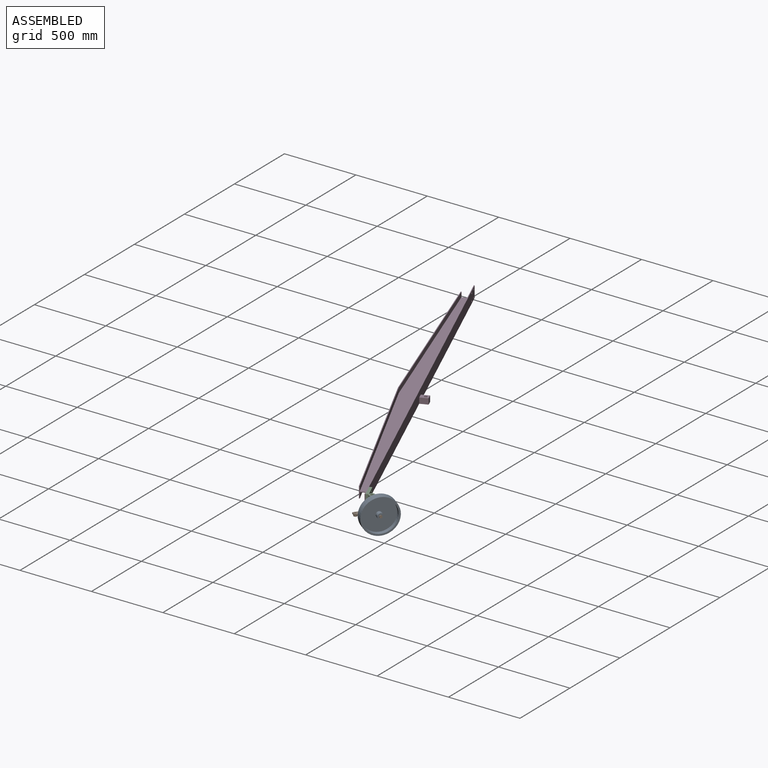
[diagram: assembled view]
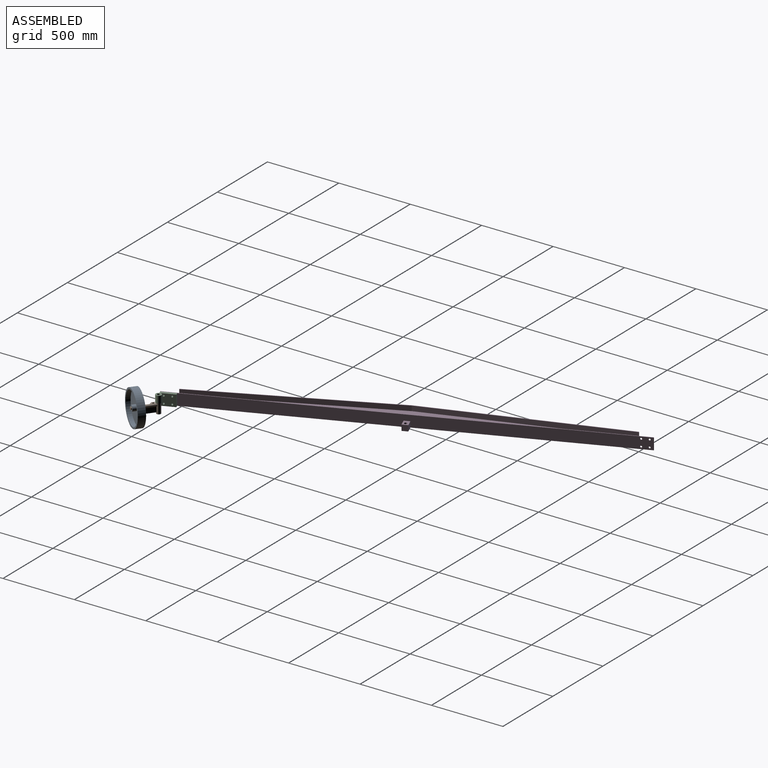
[diagram: assembled view, second angle]
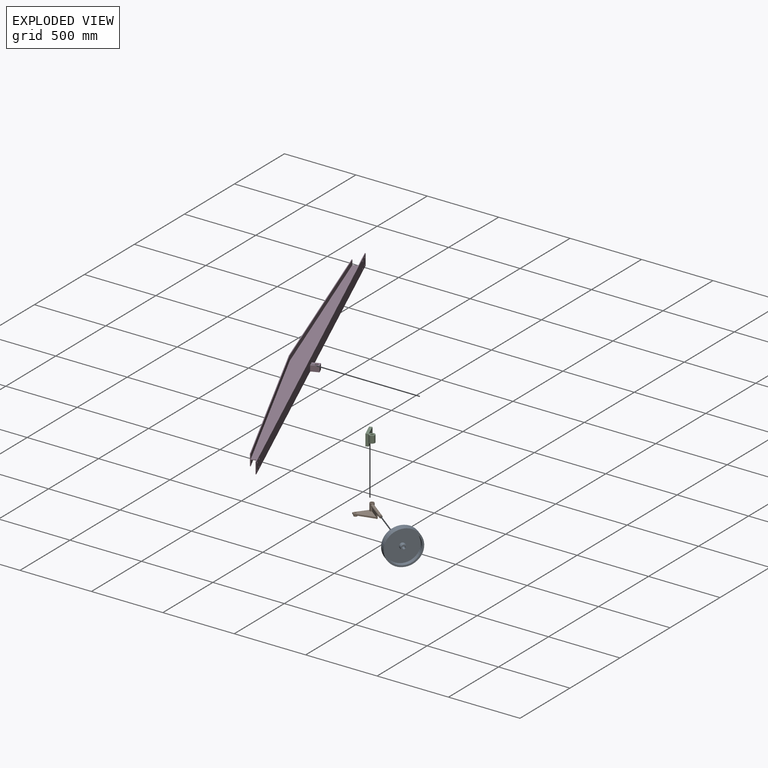
[diagram: exploded view]
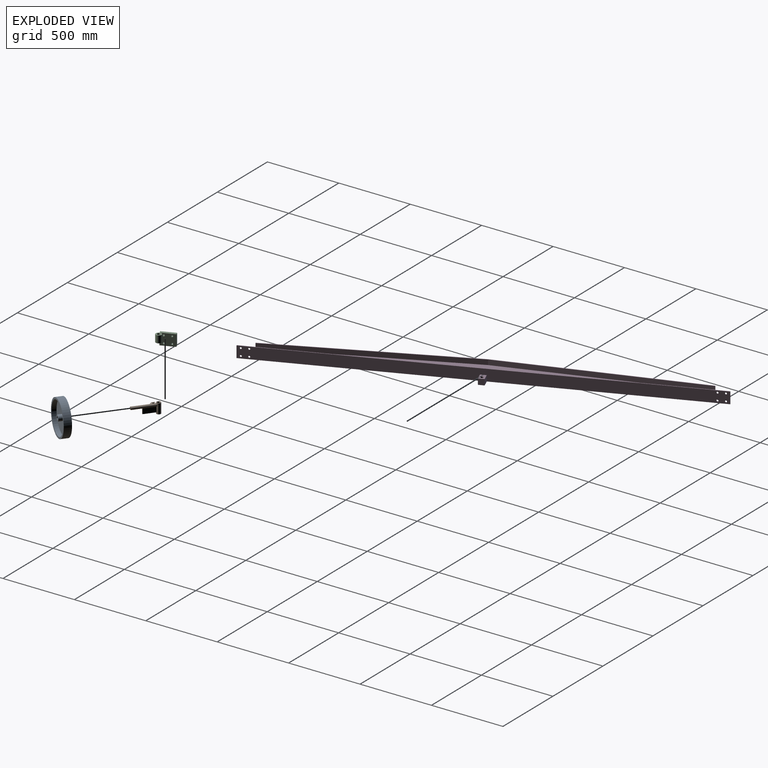
[diagram: exploded view, second angle]
ASSEMBLY  parts=4 mates=3
PART A: 8 faces, bbox 244x50x244 mm
  f0: plane 220x220mm, normal (0,-1,0), area 36756.6mm2, adj f4,f6
  f1: cylinder r=10mm len=50mm, axis (0,1,0), area 3141.6mm2, adj f3,f7
  f2: cylinder r=122mm len=244mm, axis (0,1,0), area 38327.4mm2, adj f3,f5
  f3: plane 244x244mm, normal (0,1,0), area 46445.3mm2, adj f1,f2
  f4: cylinder r=110mm len=220mm, axis (0,1,0), area 20734.5mm2, adj f0,f5
  f5: plane 244x244mm, normal (0,-1,0), area 8746.2mm2, adj f2,f4
  f6: cylinder r=20mm len=40mm, axis (0,1,0), area 3769.9mm2, adj f0,f7
  f7: plane 40x40mm, normal (0,-1,0), area 942.5mm2, adj f1,f6
PART B: 25 faces, bbox 130x185x70 mm
  f0: cylinder r=10mm len=55mm, axis (0,1,0), area 3455.8mm2, adj f2,f8
  f1: cylinder r=9.5mm len=19mm, axis (0,-1,0), area 119.4mm2, adj f2,f3
  f2: plane 20x20mm, normal (0,-1,0), area 30.6mm2, adj f0,f1
  f3: plane 20x20mm, normal (0,1,0), area 30.6mm2, adj f1,f5
  f4: plane 20x20mm, normal (0,-1,0), area 314.2mm2, adj f5
  f5: cylinder r=10mm len=20mm, axis (0,1,0), area 125.7mm2, adj f3,f4
  f6: cylinder r=9.5mm len=19mm, axis (0,-1,0), area 119.4mm2, adj f7,f8
  f7: plane 20x20mm, normal (0,-1,0), area 30.6mm2, adj f6,f12
  f8: plane 20x20mm, normal (0,1,0), area 30.6mm2, adj f0,f6
  f9: cylinder r=10.05mm len=70mm, axis (0,0,-1), area 4420.2mm2, adj f10,f13
  f10: plane 30x30mm, normal (0,0,-1), area 389.5mm2, adj f9,f11
  f11: cylinder r=15mm len=70mm, axis (0,0,-1), area 5641.8mm2, adj f10,f12,f13,f14,f15,f17,f18,f19
  f12: cylinder r=10mm len=97.82mm, axis (0,1,0), area 5337.1mm2, adj f7,f11,f14,f15,f16
  f13: plane 30x30mm, normal (0,0,1), area 389.5mm2, adj f9,f11
  f14: plane 83.54x35.84mm, normal (1,0,0), area 2189.6mm2, adj f11,f12,f16,f17,f19,f20
  f15: plane 83.54x35.84mm, normal (-1,0,0), area 2993.8mm2, adj f11,f12,f16,f17
  f16: plane 35.84x8mm, normal (0,-1,0), area 282.2mm2, adj f12,f14,f15,f17
  f17: plane 119x110mm, normal (0,0,1), area 7026.6mm2, adj f11,f14,f15,f16,f18,f20,f21,f23
  f18: plane 106x10mm, normal (0,1,0), area 1060mm2, adj f11,f17,f19,f21
  f19: plane 111x106.87mm, normal (0,0,-1), area 6690.8mm2, adj f11,f14,f18,f20,f21,f22
  f20: plane 111x86.87mm, normal (0.62,-0.79,0), area 1409.5mm2, adj f14,f17,f19,f21
  f21: plane 20x10mm, normal (1,0,0), area 200mm2, adj f17,f18,f19,f20
  f22: cylinder r=6.25mm len=20mm, axis (0,0,-1), area 785.4mm2, adj f19,f24
  f23: cylinder r=12mm len=24mm, axis (0,0,-1), area 754mm2, adj f17,f24
  f24: plane 24x24mm, normal (0,0,1), area 329.7mm2, adj f22,f23
PART C: 13 faces, bbox 120x59x80 mm
  f0: plane 80x20mm, normal (1,0,0), area 1550mm2, adj f1,f2,f4,f9,f11,f12
  f1: plane 100x80mm, normal (0,-1,0), area 7235.4mm2, adj f0,f2,f3,f4,f5,f6,f7,f8
  f2: plane 100x20mm, normal (0,0,1), area 2000mm2, adj f0,f1,f3,f9
  f3: plane 80x20mm, normal (-1,0,0), area 1600mm2, adj f1,f2,f4,f9
  f4: plane 120x59mm, normal (0,0,-1), area 2938.3mm2, adj f0,f1,f3,f9,f10,f11
  f5: cylinder r=6mm len=20mm, axis (0,1,0), area 754mm2, adj f1,f9
  f6: cylinder r=6mm len=20mm, axis (0,1,0), area 754mm2, adj f1,f9
  f7: cylinder r=6mm len=20mm, axis (0,1,0), area 754mm2, adj f1,f9
  f8: cylinder r=6mm len=20mm, axis (0,1,0), area 754mm2, adj f1,f9
  f9: plane 100x80mm, normal (0,1,0), area 7547.6mm2, adj f0,f2,f3,f4,f5,f6,f7,f8
  f10: cylinder r=10mm len=50mm, axis (0,0,1), area 3141.6mm2, adj f4,f12
  f11: cylinder r=20mm len=50mm, axis (0,0,1), area 5965.6mm2, adj f0,f1,f4,f12
  f12: plane 40x40mm, normal (0,0,1), area 938.3mm2, adj f0,f1,f10,f11
PART D: 31 faces, bbox 2900x80x185 mm
  f0: plane 2900x80mm, normal (0,0,-1), area 229418.3mm2, adj f14,f15,f16,f17,f18,f19,f20,f21
  f1: plane 2900x80mm, normal (0,0,1), area 217518.3mm2, adj f2,f3,f4,f5,f14,f15,f16,f17
  f2: plane 80x55.01mm, normal (1,0,0), area 650.5mm2, adj f1,f4,f5,f6,f9,f10,f12,f13
  f3: plane 80x55.01mm, normal (-1,0,0), area 650.5mm2, adj f1,f4,f5,f7,f8,f11,f12,f13
  f4: plane 2700x120mm, normal (0,-1,0), area 229500mm2, adj f1,f2,f3,f10,f11
  f5: plane 2700x120mm, normal (0,1,0), area 229500mm2, adj f1,f2,f3,f6,f7
  f6: plane 1350x70mm, normal (-0.05,0,-1), area 54072.5mm2, adj f2,f5,f7,f12
  f7: plane 1350x70mm, normal (0.05,0,-1), area 54072.5mm2, adj f3,f5,f6,f12
  f8: plane 1350x80mm, normal (-0.05,0,1), area 108145.1mm2, adj f3,f9,f12,f13
  f9: plane 1350x80mm, normal (0.05,0,1), area 108145.1mm2, adj f2,f8,f12,f13
  f10: plane 1350x70mm, normal (-0.05,0,-1), area 47313.5mm2, adj f2,f4,f11,f13
  f11: plane 1350x70mm, normal (0.05,0,-1), area 47313.5mm2, adj f3,f4,f10,f13
  f12: plane 2700x75.01mm, normal (0,1,0), area 13518.1mm2, adj f2,f3,f6,f7,f8,f9
  f13: plane 2700x75.01mm, normal (0,-1,0), area 13518.1mm2, adj f2,f3,f8,f9,f10,f11
  f14: plane 2900x60mm, normal (0,1,0), area 16382.7mm2, adj f0,f1,f16,f17,f26,f27,f28,f29
  f15: plane 2900x5mm, normal (0,-1,0), area 14500mm2, adj f0,f1,f16,f17
  f16: plane 80x5mm, normal (-1,0,0), area 400mm2, adj f0,f1,f14,f15
  f17: plane 80x5mm, normal (1,0,0), area 400mm2, adj f0,f1,f14,f15
  f18: cylinder r=6.25mm len=12.5mm, axis (0,0,1), area 196.3mm2, adj f0,f1
  f19: cylinder r=6.25mm len=12.5mm, axis (0,0,1), area 196.3mm2, adj f0,f1
  f20: cylinder r=6.25mm len=12.5mm, axis (0,0,1), area 196.3mm2, adj f0,f1
  f21: cylinder r=6.25mm len=12.5mm, axis (0,0,1), area 196.3mm2, adj f0,f1
  f22: cylinder r=6.25mm len=12.5mm, axis (0,0,1), area 196.3mm2, adj f0,f1
  f23: cylinder r=6.25mm len=12.5mm, axis (0,0,1), area 196.3mm2, adj f0,f1
  f24: cylinder r=6.25mm len=12.5mm, axis (0,0,1), area 196.3mm2, adj f0,f1
  f25: cylinder r=6.25mm len=12.5mm, axis (0,0,1), area 196.3mm2, adj f0,f1
  f26: plane 55x40mm, normal (1,0,0), area 2200mm2, adj f0,f14,f28,f30
  f27: plane 55x40mm, normal (-1,0,0), area 2200mm2, adj f0,f14,f28,f30
  f28: plane 40x40mm, normal (0,0,-1), area 1600mm2, adj f14,f26,f27,f30
  f29: cylinder r=10.05mm len=40mm, axis (0,-1,0), area 2525.8mm2, adj f14,f30
  f30: plane 55x40mm, normal (0,-1,0), area 1882.7mm2, adj f0,f26,f27,f28,f29
PLACE A rot(axis=(0.44,-0.9,0),180deg) t=(-56.39,17.56,151.2)mm
PLACE B rot(axis=(0.44,-0.9,0),180deg) t=(-146.86,86.93,151.2)mm
PLACE C rot(axis=(0.83,-0.56,0),180deg) t=(-202.04,118.17,176.2)mm
PLACE D rot(axis=(-0.43,-0.64,0.64),133.8deg) t=(-742.93,1409.48,176.2)mm
MATE revolute B.f0 <-> A.f2  axis (0.79,-0.61,0) through (-11.95,-16.51,151.2)mm
MATE revolute C.f10 <-> B.f9  axis (0,0,-1) through (-146.86,86.93,216.2)mm
MATE revolute C.f5 <-> D.f18  axis (-0.92,-0.38,0) through (-211.61,141.27,151.2)mm
